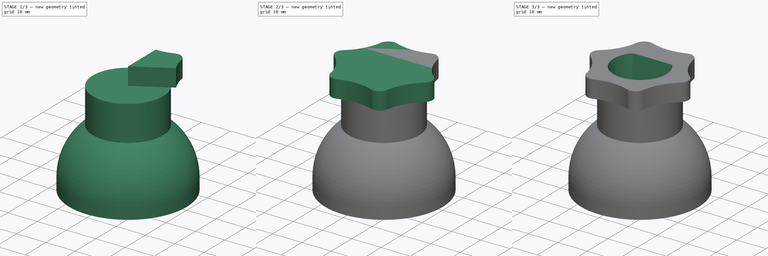
[diagram: build sequence overview — one tinted view per stage of 3, left to right]
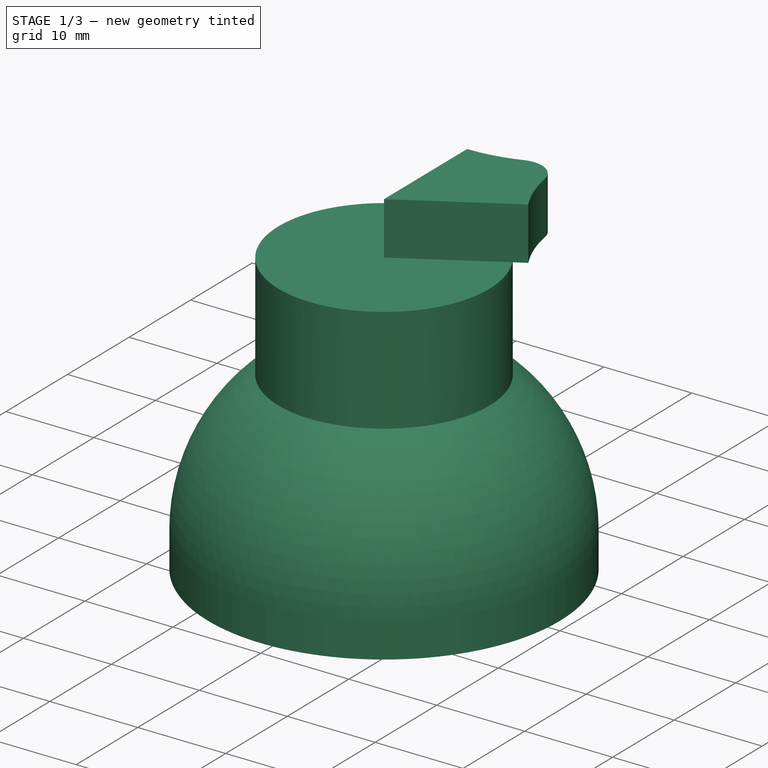
[diagram: stage 1 of 3 — iso view after this stage's code; geometry added in this stage tinted green]
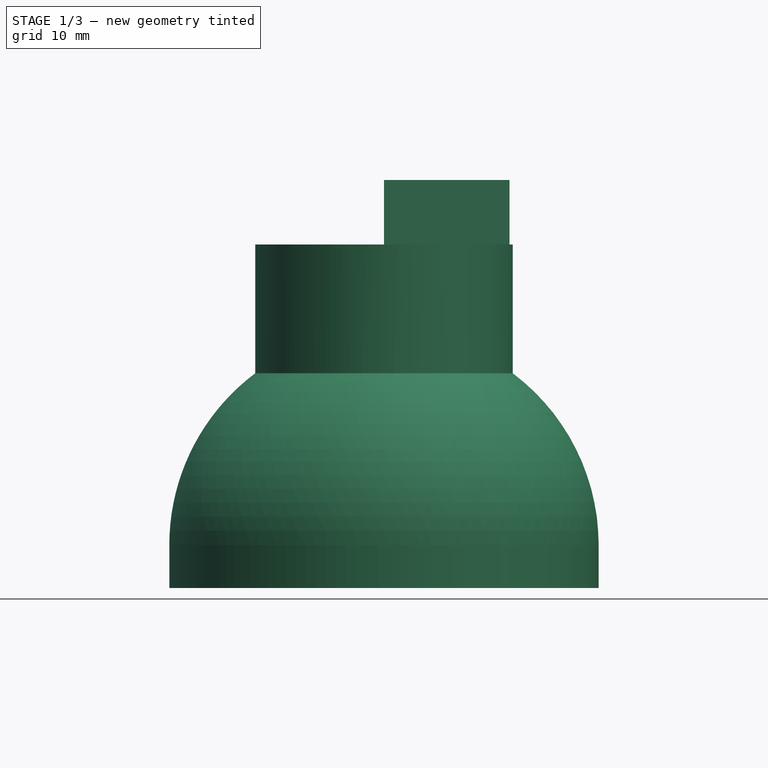
[diagram: stage 1 of 3 — front view after this stage's code; geometry added in this stage tinted green]
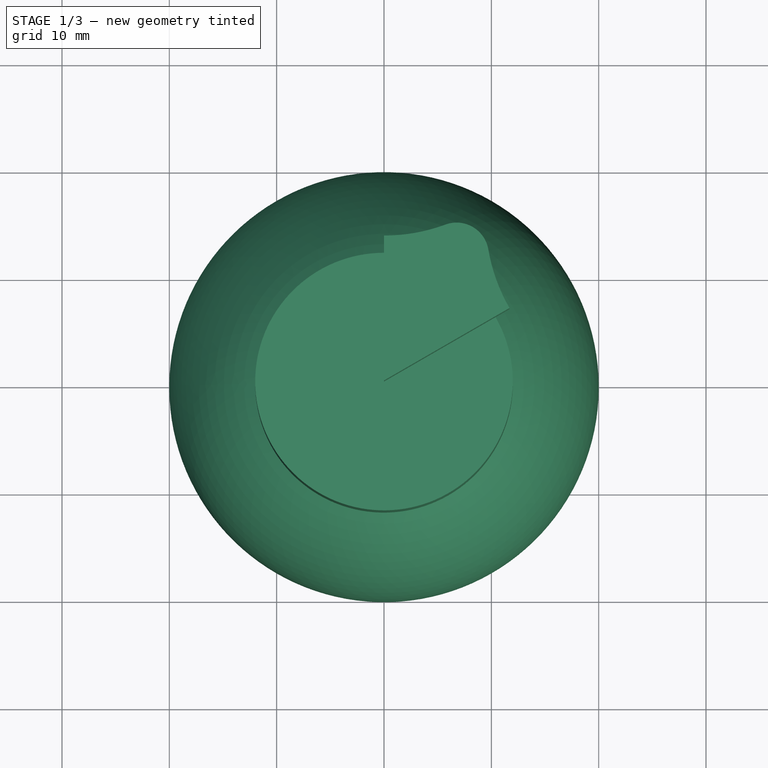
[diagram: stage 1 of 3 — top view after this stage's code; geometry added in this stage tinted green]
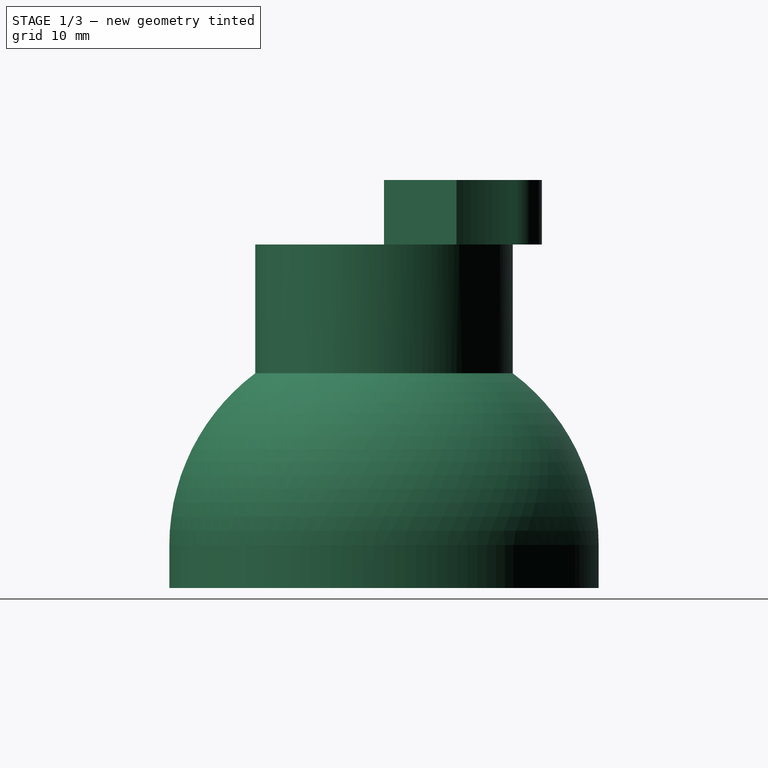
[diagram: stage 1 of 3 — right view after this stage's code; geometry added in this stage tinted green]
FCSTD DOCUMENT  (FreeCAD 1.1R42461 (Git))
Label: 24-WC-31-NOZZLE
License: Creative Commons Attribution-NonCommercial-ShareAlike 4.0
LicenseURL: https://creativecommons.org/licenses/by-nc-sa/4.0/
objects: Sketcher::SketchObject×5, PartDesign::Mirrored×2, PartDesign::Pad×2, PartDesign::Pocket×2, App::Point×1, PartDesign::Revolution×1, App::TextDocument×1, PartDesign::PolarPattern×1, PartDesign::MultiTransform×1, PartDesign::Body×1
note: 34 computed .brp shape members not serialized (recipe doc carries the construction recipe); baked Part::Feature solids carry a one-line shape summary decoded from their .brp

FEATURE [App::Point] Origin001  label="Origine"
  Role = Origin
FEATURE [Sketcher::SketchObject] Sketch
  ArcFitTolerance = 1e-06
  AttachmentSupport = -> [Origin]
  ExternalTypes = [0]
  FullyConstrained = true
  MakeInternals = false
  MapMode = 5
  Placement = pos=(0,0,0) rot=(1,0,0;1.5708rad)
  sketch-geometry (8):
    g0: LineSegment StartX=1.8e-15 StartY=32 StartZ=0 EndX=1.8e-15 EndY=21 EndZ=0
    g1: ArcOfCircle CenterX=0 CenterY=4 CenterZ=0 NormalX=0 NormalY=0 NormalZ=1 AngleXU=0 Radius=17 StartAngle=1.5708 EndAngle=3.14159
    g2: ArcOfCircle CenterX=0 CenterY=4 CenterZ=0 NormalX=0 NormalY=0 NormalZ=1 AngleXU=0 Radius=20 StartAngle=2.2143 EndAngle=3.14159
    g3: LineSegment StartX=-12 StartY=20 StartZ=0 EndX=-12 EndY=32 EndZ=0
    g4: LineSegment StartX=-12 StartY=32 StartZ=0 EndX=1.8e-15 EndY=32 EndZ=0
    g5: LineSegment StartX=-20 StartY=4 StartZ=0 EndX=-20 EndY=0 EndZ=0
    g6: LineSegment StartX=-20 StartY=0 StartZ=0 EndX=-17 EndY=0 EndZ=0
    g7: LineSegment StartX=-17 StartY=0 StartZ=0 EndX=-17 EndY=4 EndZ=0
  constraints (24):
    c: Coincident(g2,g3)
    c: Vertical(g3)
    c: Coincident(g3,g4)
    c: Horizontal(g4)
    c: Radius(g2) = 20
    c: PointOnObject(g5,g-1)
    c: Coincident(g5,g6)
    c: PointOnObject(g6,g-1)
    c: Coincident(g6,g7)
    c: Vertical(g5)
    c: Coincident(g1,g2)
    c: PointOnObject(g1,g-2)
    c: Tangent(g2,g5) = -1.5708
    c: Vertical(g7)
    c: Tangent(g7,g1) = 1.5708
    c: Distance(g5,g6) = 3
    c: Coincident(g1,g0)
    c: DistanceX(g3,g-1) = 12
    c: PointOnObject(g0,g-2)
    c: Vertical(g0)
    c: DistanceY(g-1,g2) = 20
    c: Coincident(g4,g0)
    c: DistanceY(g-1,g0) = 32
    c: Distance(g1,g-1) = 4
FEATURE [PartDesign::Revolution] Revolution
  Angle = 360
  Angle2 = 60
  Axis = (0,2e-16,1)
  Base = (0,0,0)
  Profile = -> Sketch
  ReferenceAxis = -> Sketch [V_Axis]
  Refine = true
  Suppressed = false
  Type = 0
FEATURE [Sketcher::SketchObject] Sketch001
  ArcFitTolerance = 1e-06
  AttachmentSupport = -> [Revolution]
  ExternalTypes = [0]
  FullyConstrained = true
  MakeInternals = false
  MapMode = 5
  Placement = pos=(0,7e-15,32) rot=(0,0,1;0rad)
  sketch-geometry (8):
    g0: ArcOfCircle CenterX=0 CenterY=30 CenterZ=0 NormalX=0 NormalY=0 NormalZ=1 AngleXU=0 Radius=16.5 StartAngle=4.71239 EndAngle=5.06643
    g1: ArcOfCircle CenterX=6.76041 CenterY=11.7094 CenterZ=0 NormalX=0 NormalY=0 NormalZ=1 AngleXU=0 Radius=3 StartAngle=0.169561 EndAngle=1.92483
    g2: ArcOfCircle CenterX=25.9808 CenterY=15 CenterZ=0 NormalX=0 NormalY=0 NormalZ=1 AngleXU=0 Radius=16.5 StartAngle=3.31115 EndAngle=3.66519
    g3: LineSegment [constr] StartX=0 StartY=0 StartZ=0 EndX=11.6913 EndY=6.75 EndZ=0
    g4: LineSegment [constr] StartX=5.72035 StartY=14.5233 StartZ=0 EndX=9.71739 EndY=12.2156 EndZ=0
    g5: LineSegment [constr] StartX=0 StartY=0 StartZ=0 EndX=6.76041 EndY=11.7094 EndZ=0
    g6: LineSegment StartX=-3e-15 StartY=13.5 StartZ=0 EndX=0 EndY=0 EndZ=0
    g7: LineSegment StartX=0 StartY=0 StartZ=0 EndX=11.6913 EndY=6.75 EndZ=0
  constraints (21):
    c: PointOnObject(g0,g-2)
    c: PointOnObject(g0,g-2)
    c: Equal(g0,g2)
    c: Tangent(g1,g0) = 1.5708
    c: Tangent(g2,g1) = 1.5708
    c: Radius(g0) = 16.5
    c: Radius(g1) = 3
    c: DistanceY(g-1,g0) = 30
    c: Coincident(g3,g-1)
    c: Coincident(g3,g2)
    c: PointOnObject(g2,g3)
    c: Angle(g3,g-2) = 1.0472
    c: Coincident(g4,g0)
    c: Coincident(g4,g1)
    c: Coincident(g5,g3)
    c: Coincident(g5,g1)
    c: Perpendicular(g4,g5)
    c: Coincident(g0,g6)
    c: Coincident(g7,g2)
    c: Coincident(g3,g7)
    c: Coincident(g6,g3)
FEATURE [Sketcher::SketchObject] Sketch002
  ArcFitTolerance = 1e-06
  AttachmentSupport = -> [Origin]
  ExternalTypes = [0]
  FullyConstrained = true
  MakeInternals = false
  MapMode = 5
  Placement = pos=(0,0,0) rot=(0.57735,0.57735,0.57735;2.0944rad)
  sketch-geometry (5):
    g0: LineSegment StartX=-13 StartY=6 StartZ=0 EndX=-13 EndY=15.1422 EndZ=0
    g1: LineSegment StartX=-13 StartY=15.1422 StartZ=0 EndX=-10 EndY=17.8978 EndZ=0
    g2: LineSegment StartX=-10 StartY=17.8978 StartZ=0 EndX=-10 EndY=6 EndZ=0
    g3: LineSegment StartX=-10 StartY=6 StartZ=0 EndX=-13 EndY=6 EndZ=0
    g4: GeomPoint X=-11.5 Y=16.52 Z=0
  constraints (13):
    c: Vertical(g0)
    c: Coincident(g1,g2)
    c: Vertical(g2)
    c: Coincident(g2,g3)
    c: Coincident(g3,g0)
    c: Coincident(g0,g1)
    c: Symmetric(g1,g1,g4)
    c: DistanceX(g3,g3) = 3
    c: DistanceX(g2,g-1) = 10
    c: PointOnObject(g4,g-5)
    c: Tangent(g-5,g1)
    c: Horizontal(g3)
    c: DistanceY(g-1,g0) = 6
FEATURE [PartDesign::Mirrored] Mirrored
  MirrorPlane = -> Sketch002 [V_Axis]
  Refine = true
  Suppressed = false
  TransformMode = 0
FEATURE [PartDesign::Mirrored] Mirrored001
  MirrorPlane = -> YZ_Plane
  Refine = true
  Suppressed = false
  TransformMode = 0
FEATURE [App::TextDocument] Text_document  label="README"
  Text = https://www.youtube.com/watch?v=keqXL3VMrn4\n\n7800 kg/m3\n\nGot 128.4g, but 111g expected.\nDon't know where the error is
FEATURE [PartDesign::Pad] Pad001
  BaseFeature = -> Revolution
  Direction = (0,0,1)
  Length = 6
  Length2 = 10
  Profile = -> Sketch001
  ReferenceAxis = -> Sketch001 [N_Axis]
  Refine = true
  Suppressed = false
  Type = 0
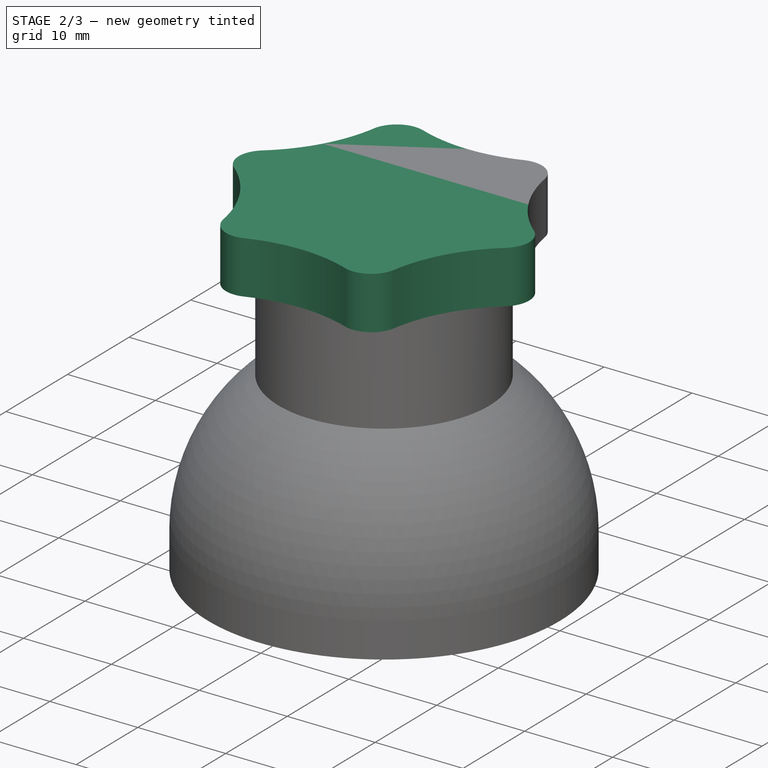
[diagram: stage 2 of 3 — iso view after this stage's code; geometry added in this stage tinted green]
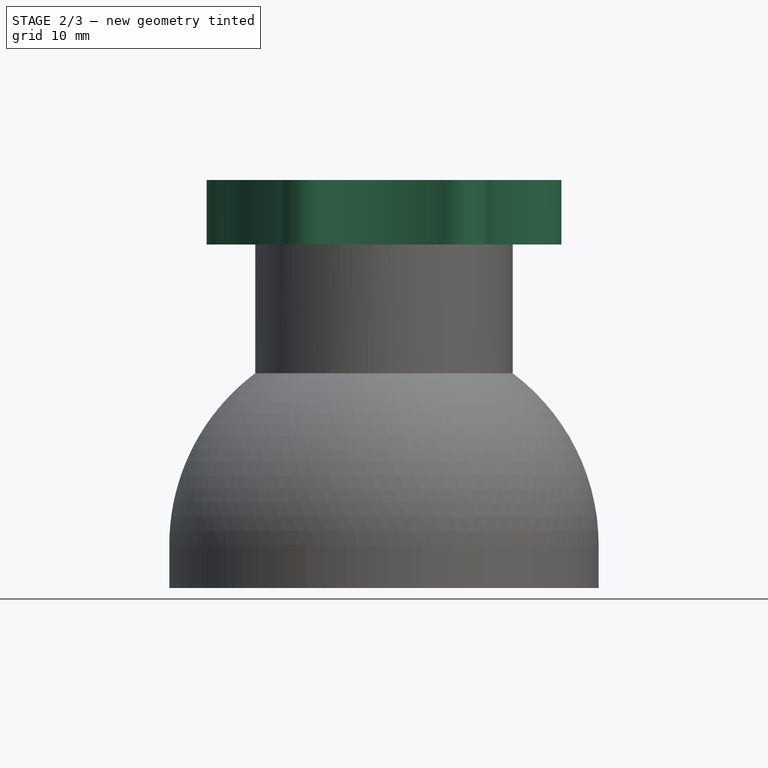
[diagram: stage 2 of 3 — front view after this stage's code; geometry added in this stage tinted green]
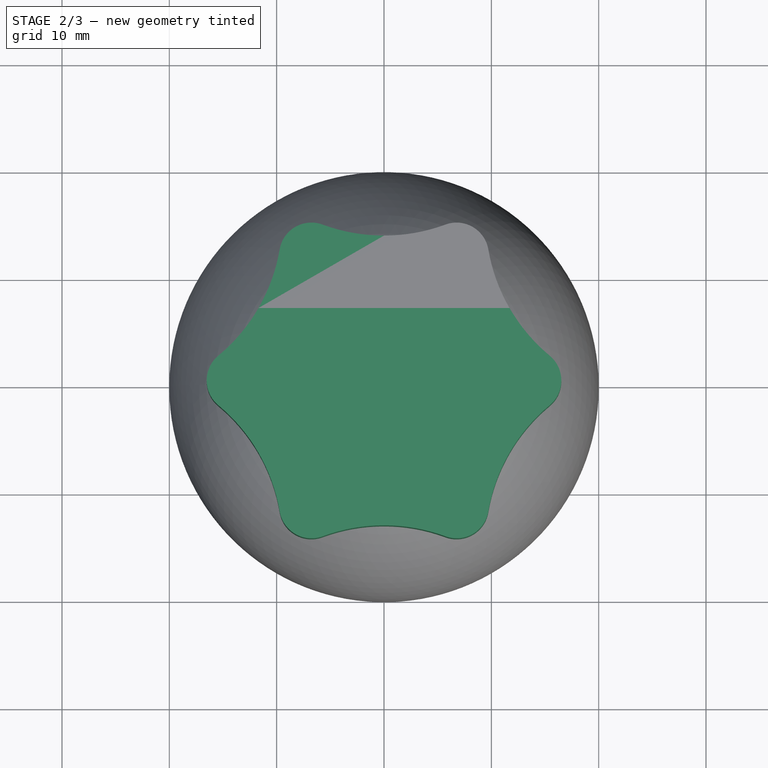
[diagram: stage 2 of 3 — top view after this stage's code; geometry added in this stage tinted green]
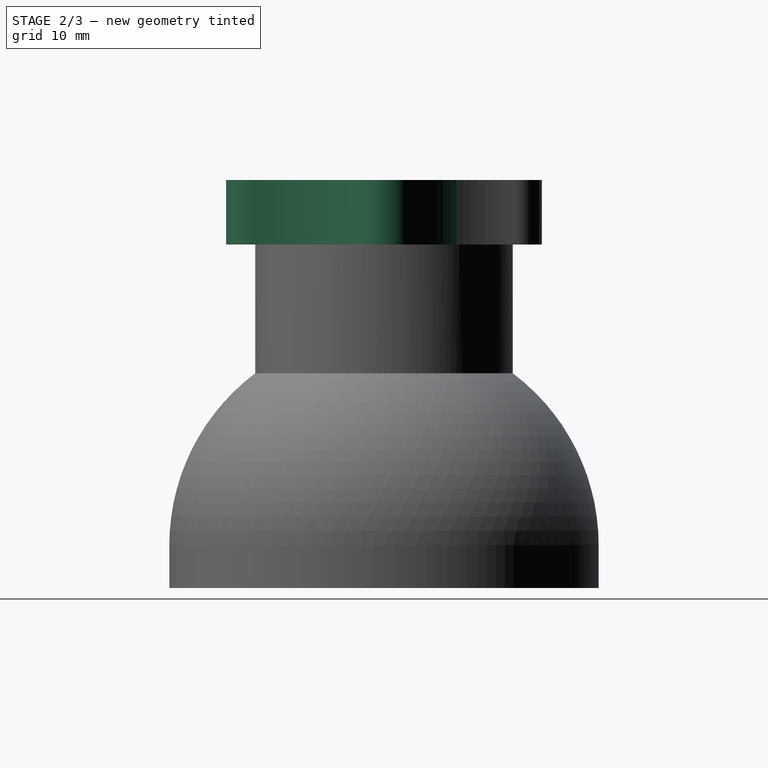
[diagram: stage 2 of 3 — right view after this stage's code; geometry added in this stage tinted green]
FEATURE [PartDesign::PolarPattern] PolarPattern
  Angle = 360
  Axis = -> Sketch001 [N_Axis]
  BaseFeature = -> Pad001
  Mode = 0
  Occurrences = 6
  Offset = 120
  Originals = -> [Pad001]
  Refine = true
  Suppressed = false
  TransformMode = 0
FEATURE [PartDesign::Pad] Pad  label="Rib"
  BaseFeature = -> PolarPattern
  Direction = (1,0,0)
  Length = 10
  Length2 = 10
  Midplane = true
  Profile = -> Sketch002
  ReferenceAxis = -> Sketch002 [N_Axis]
  Refine = true
  Suppressed = false
  Type = 1
FEATURE [PartDesign::MultiTransform] MultiTransform
  BaseFeature = -> Pad
  Originals = -> [Pad]
  Refine = true
  Suppressed = false
  TransformMode = 0
  Transformations = -> [Mirrored,Mirrored001]
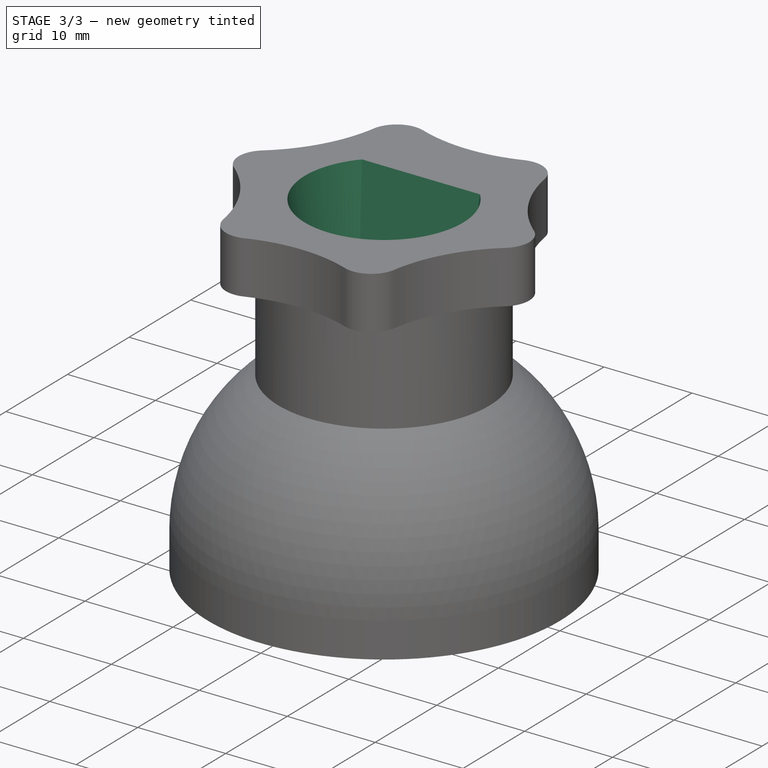
[diagram: stage 3 of 3 — iso view after this stage's code; geometry added in this stage tinted green]
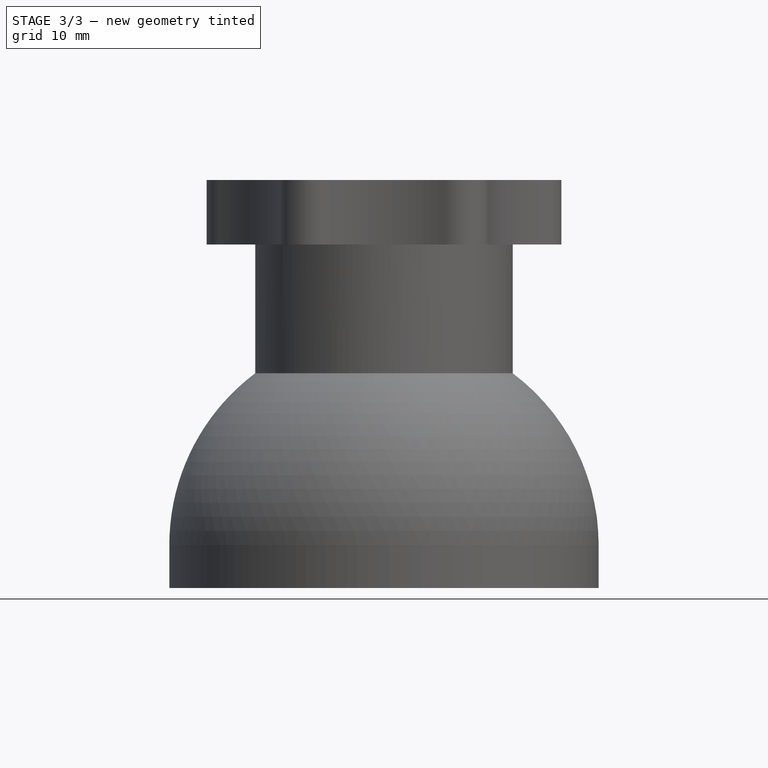
[diagram: stage 3 of 3 — front view after this stage's code; geometry added in this stage tinted green]
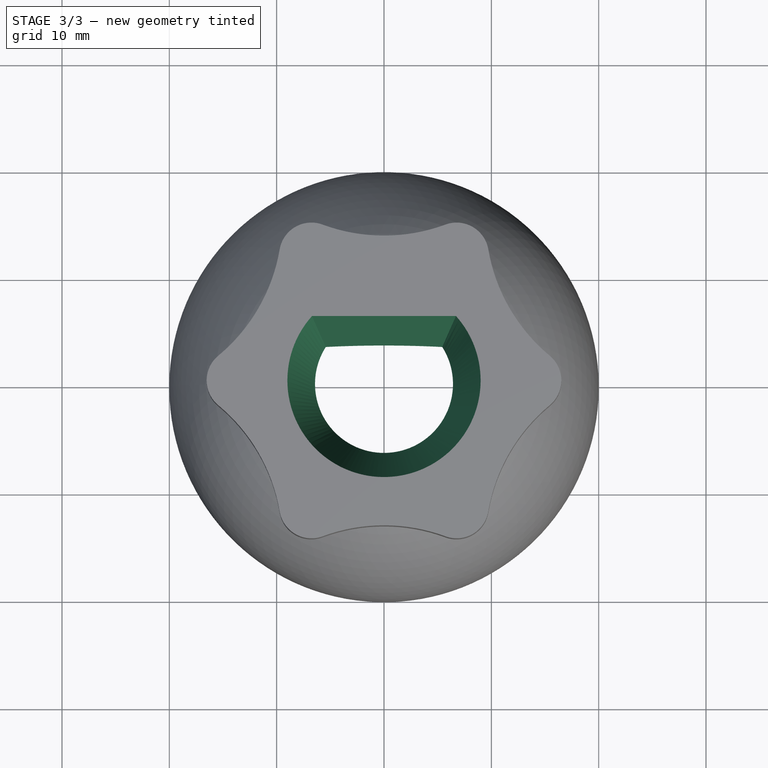
[diagram: stage 3 of 3 — top view after this stage's code; geometry added in this stage tinted green]
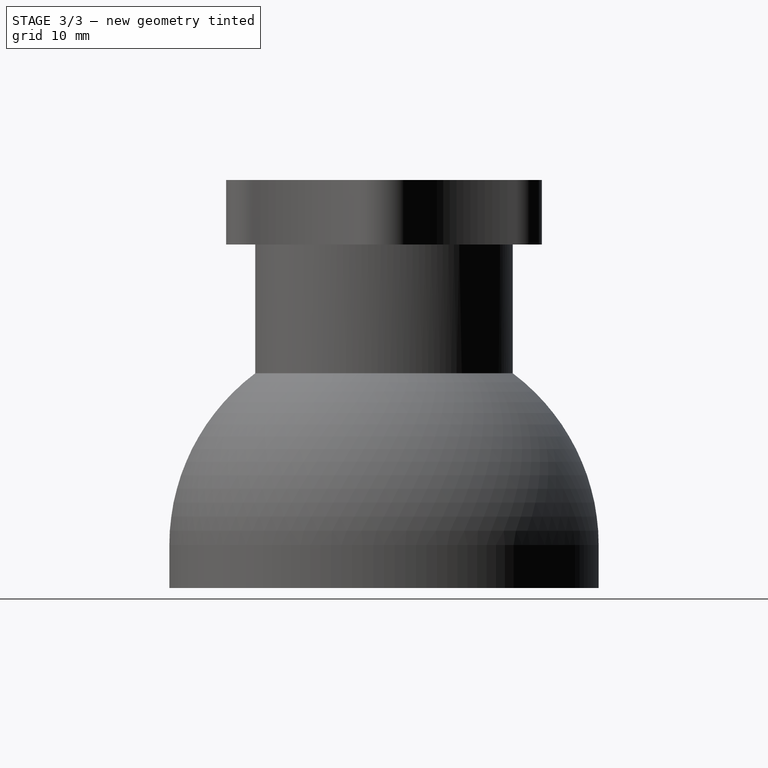
[diagram: stage 3 of 3 — right view after this stage's code; geometry added in this stage tinted green]
FEATURE [Sketcher::SketchObject] Sketch003
  ArcFitTolerance = 1e-06
  AttachmentSupport = -> [MultiTransform]
  ExternalGeometry = -> [MultiTransform,Pad001]
  ExternalTypes = [0,0]
  FullyConstrained = true
  MakeInternals = false
  MapMode = 5
  Placement = pos=(0,13,0) rot=(0,0.707107,0.707107;3.14159rad)
  sketch-geometry (2):
    g0: ArcOfCircle CenterX=0 CenterY=4 CenterZ=0 NormalX=0 NormalY=0 NormalZ=1 AngleXU=0 Radius=8.75 StartAngle=0.23061 EndAngle=2.91098
    g1: LineSegment StartX=-8.51836 StartY=6 StartZ=0 EndX=8.51836 EndY=6 EndZ=0
  constraints (7):
    c: Radius(g0) = 8.75
    c: Coincident(g1,g0)
    c: Coincident(g1,g0)
    c: PointOnObject(g0,g-3)
    c: PointOnObject(g0,g-3)
    c: Vertical(g0,g-1)
    c: PointOnObject(g0,g-4)
FEATURE [PartDesign::Pocket] Pocket001
  BaseFeature = -> MultiTransform
  Direction = (0,-1,2e-16)
  Length = 0
  Length2 = 5
  Profile = -> Sketch003
  ReferenceAxis = -> Sketch003 [N_Axis]
  Refine = true
  Suppressed = false
  Type = 3
  UpToFace = -> MultiTransform [Face25]
FEATURE [Sketcher::SketchObject] Sketch004
  ArcFitTolerance = 1e-06
  AttachmentSupport = -> [Pocket001]
  ExternalTypes = [0]
  FullyConstrained = true
  MakeInternals = false
  MapMode = 5
  Placement = pos=(0,0,38) rot=(0,0,1;0rad)
  sketch-geometry (3):
    g0: LineSegment StartX=-6.7082 StartY=6 StartZ=0 EndX=6.7082 EndY=6 EndZ=0
    g1: GeomPoint X=0 Y=-9 Z=0
    g2: ArcOfCircle CenterX=0 CenterY=0 CenterZ=0 NormalX=0 NormalY=0 NormalZ=1 AngleXU=0 Radius=9 StartAngle=2.41186 EndAngle=7.01291
  constraints (8):
    c: Horizontal(g0)
    c: PointOnObject(g1,g-2)
    c: Distance(g1,g0) = 15
    c: Coincident(g2,g-1)
    c: Coincident(g2,g0)
    c: Coincident(g2,g0)
    c: Radius(g2) = 9
    c: PointOnObject(g1,g2)
FEATURE [PartDesign::Pocket] Pocket002
  BaseFeature = -> Pocket001
  Direction = (0,0,-1)
  Length = 20
  Length2 = 5
  Profile = -> Sketch004
  ReferenceAxis = -> Sketch004 [N_Axis]
  Refine = true
  Suppressed = false
  TaperAngle = -8
  Type = 0
FEATURE [PartDesign::Body] Body
  AllowCompound = true
  Group = -> [Sketch,Revolution,Pad001,PolarPattern,Sketch001,Sketch002,Pad,MultiTransform,Mirrored,Mirrored001,Sketch003,Pocket001,Pocket002,Sketch004]
  Origin = -> Origin
  Tip = -> PolarPattern
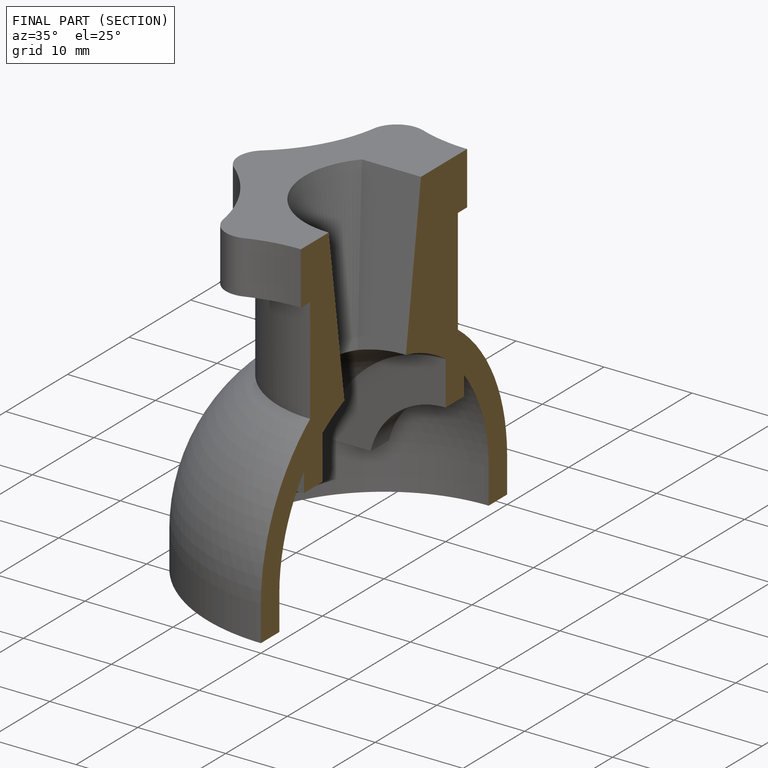
[diagram: finished part — half-section view (interior)]
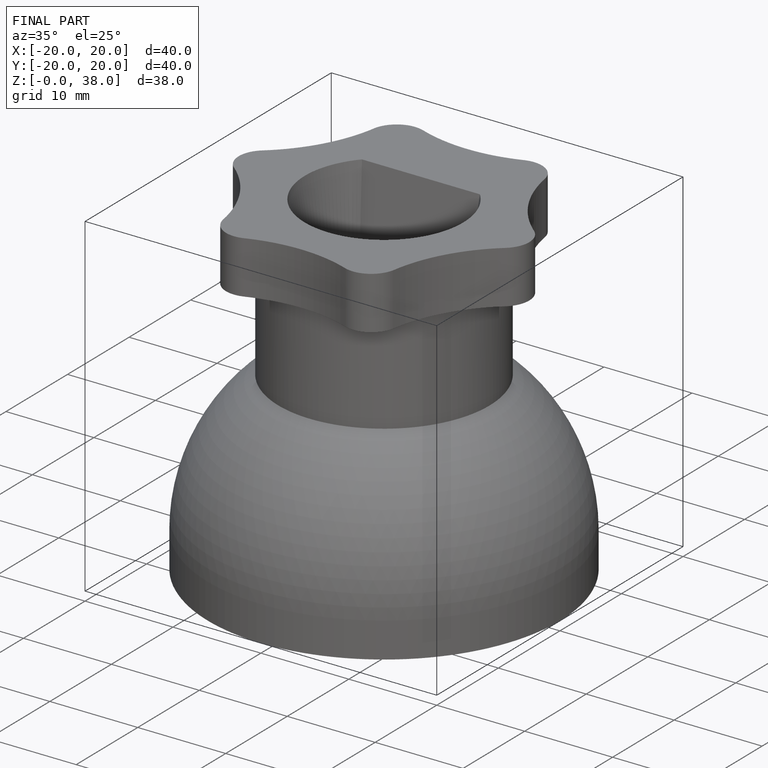
[diagram: finished part — iso view with bounding-box wireframe]
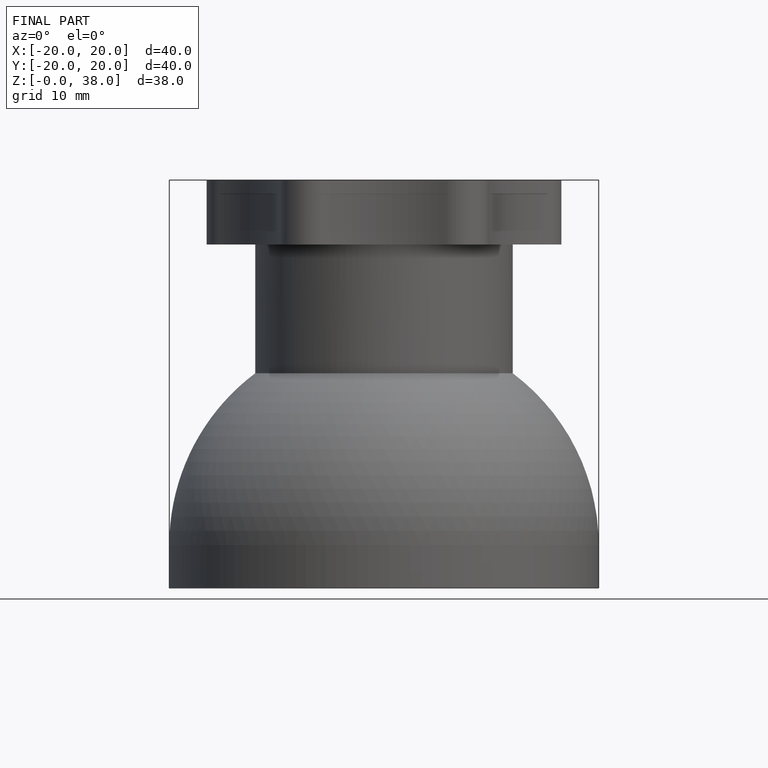
[diagram: finished part — front view with bounding-box wireframe]
